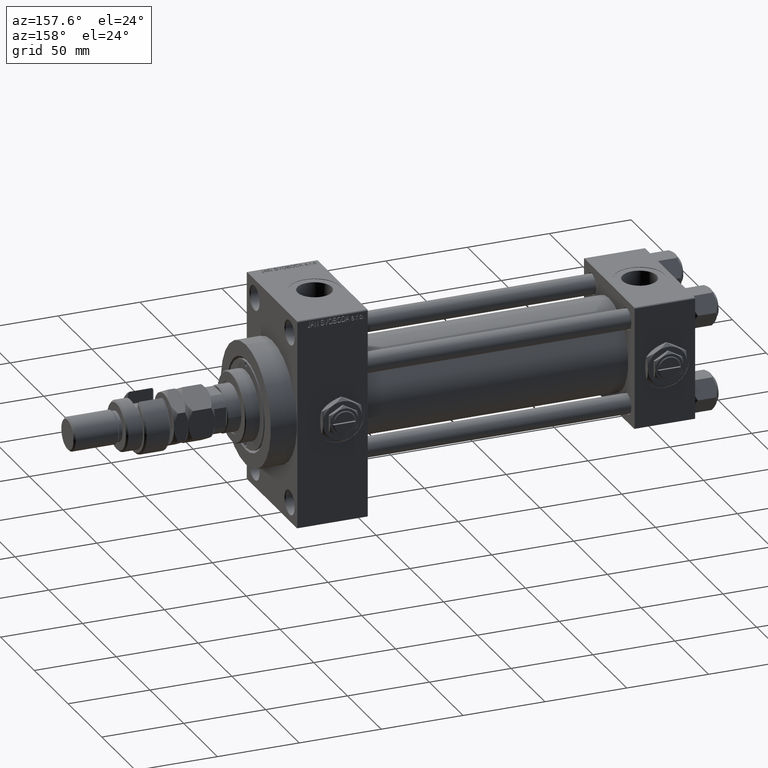
[diagram: clean part render]
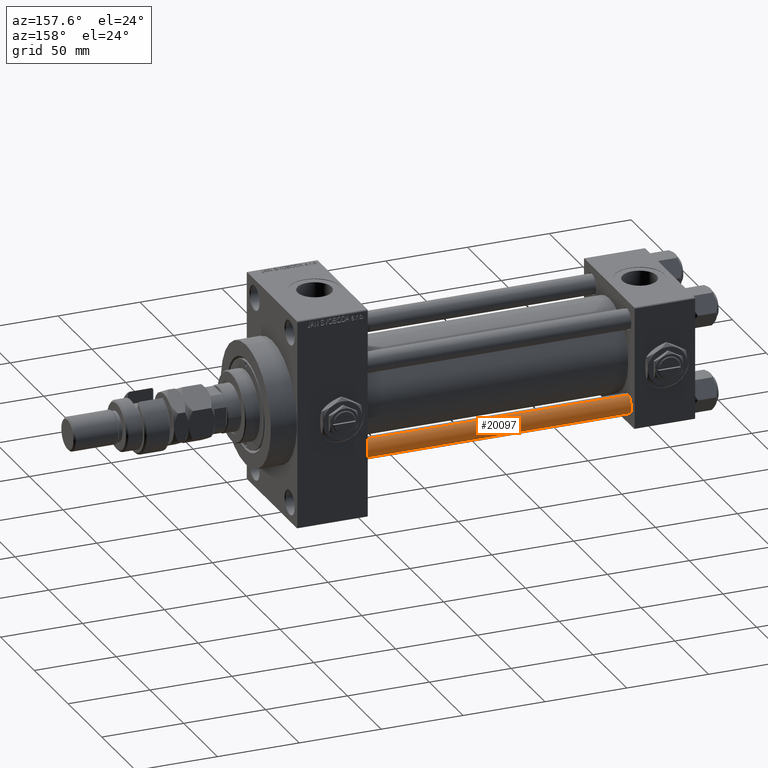
[diagram: same view with one face highlighted and labeled with its STEP entity id]
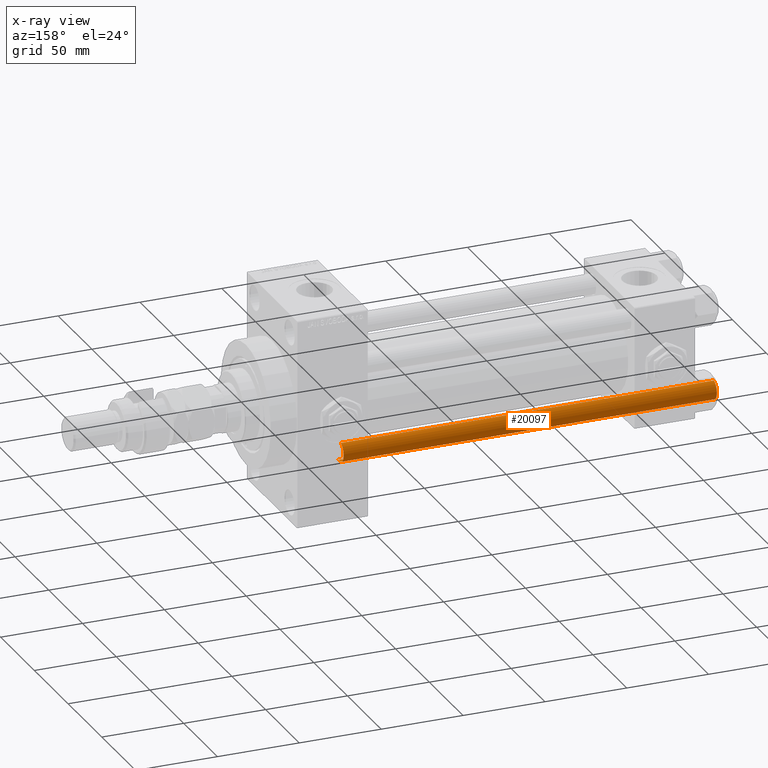
[diagram: x-ray of the same camera — body ghosted, the highlighted face saturated]
A machine part, auxiliary view. The second image highlights one B-rep face of the part: STEP entity #20097.
The next image is the same camera in x-ray: the body ghosted, the highlighted face saturated — about 0% of this face is hidden behind the body in this view.
In plain terms, the highlighted cylindrical surface (edge-blend (fillet) strip) has radius 6 mm, axis along (1, -0, 0).
Its self-contained STEP definition (entity closure, byte-faithful):
#1382 = DIRECTION ( 'NONE',  ( -0.000000000000000000, -0.000000000000000000, 1.000000000000000000 ) ) ;
#1650 = CARTESIAN_POINT ( 'NONE',  ( 0.000000000000000000, 0.000000000000000000, 0.5000000000001392220 ) ) ;
#3636 = EDGE_CURVE ( 'NONE', #45963, #42252, #21324, .T. ) ;
#5089 = CARTESIAN_POINT ( 'NONE',  ( -6.000000000000000888, 0.000000000000000000, 0.5000000000001392220 ) ) ;
#6071 = ORIENTED_EDGE ( 'NONE', *, *, #27581, .T. ) ;
#14538 = CARTESIAN_POINT ( 'NONE',  ( 6.000000000000000888, 7.347880794884119736E-16, 229.0000000000000000 ) ) ;
#15139 = ORIENTED_EDGE ( 'NONE', *, *, #3636, .T. ) ;
#17648 = ORIENTED_EDGE ( 'NONE', *, *, #46599, .T. ) ;
#19370 = DIRECTION ( 'NONE',  ( 1.000000000000000000, 0.000000000000000000, 0.000000000000000000 ) ) ;
#19821 = CIRCLE ( 'NONE', #38419, 6.000000000000000888 ) ;
#20097 = ADVANCED_FACE ( 'NONE', ( #36056 ), #51415, .T. ) ;
#21324 = CIRCLE ( 'NONE', #22202, 6.000000000000000888 ) ;
#22035 = DIRECTION ( 'NONE',  ( 1.000000000000000000, 0.000000000000000000, 0.000000000000000000 ) ) ;
#22202 = AXIS2_PLACEMENT_3D ( 'NONE', #42935, #27027, #19370 ) ;
#23090 = VERTEX_POINT ( 'NONE', #25842 ) ;
#24465 = VERTEX_POINT ( 'NONE', #5089 ) ;
#25842 = CARTESIAN_POINT ( 'NONE',  ( 6.000000000000000888, 7.347880794884119736E-16, 0.5000000000001392220 ) ) ;
#26629 = DIRECTION ( 'NONE',  ( -0.000000000000000000, -0.000000000000000000, -1.000000000000000000 ) ) ;
#27013 = VECTOR ( 'NONE', #26629, 1000.000000000000000 ) ;
#27027 = DIRECTION ( 'NONE',  ( 0.000000000000000000, 0.000000000000000000, -1.000000000000000000 ) ) ;
#27581 = EDGE_CURVE ( 'NONE', #23090, #24465, #19821, .T. ) ;
#28353 = CARTESIAN_POINT ( 'NONE',  ( 0.000000000000000000, 0.000000000000000000, 229.0000000000000000 ) ) ;
#28904 = VECTOR ( 'NONE', #35172, 1000.000000000000000 ) ;
#29675 = AXIS2_PLACEMENT_3D ( 'NONE', #28353, #35810, #43476 ) ;
#32941 = EDGE_LOOP ( 'NONE', ( #15139, #17648, #6071, #41258 ) ) ;
#34164 = CARTESIAN_POINT ( 'NONE',  ( 6.000000000000000888, 7.347880794884119736E-16, 228.5000000000001137 ) ) ;
#34851 = LINE ( 'NONE', #50472, #27013 ) ;
#35172 = DIRECTION ( 'NONE',  ( -0.000000000000000000, -0.000000000000000000, -1.000000000000000000 ) ) ;
#35810 = DIRECTION ( 'NONE',  ( -0.000000000000000000, -0.000000000000000000, -1.000000000000000000 ) ) ;
#36056 = FACE_OUTER_BOUND ( 'NONE', #32941, .T. ) ;
#37304 = EDGE_CURVE ( 'NONE', #45963, #24465, #34851, .T. ) ;
#38419 = AXIS2_PLACEMENT_3D ( 'NONE', #1650, #1382, #22035 ) ;
#41258 = ORIENTED_EDGE ( 'NONE', *, *, #37304, .F. ) ;
#42252 = VERTEX_POINT ( 'NONE', #34164 ) ;
#42935 = CARTESIAN_POINT ( 'NONE',  ( 0.000000000000000000, 0.000000000000000000, 228.5000000000001137 ) ) ;
#43476 = DIRECTION ( 'NONE',  ( -1.000000000000000000, 0.000000000000000000, 0.000000000000000000 ) ) ;
#45963 = VERTEX_POINT ( 'NONE', #50134 ) ;
#46556 = LINE ( 'NONE', #14538, #28904 ) ;
#46599 = EDGE_CURVE ( 'NONE', #42252, #23090, #46556, .T. ) ;
#50134 = CARTESIAN_POINT ( 'NONE',  ( -6.000000000000000888, 0.000000000000000000, 228.5000000000001137 ) ) ;
#50472 = CARTESIAN_POINT ( 'NONE',  ( -6.000000000000000888, 0.000000000000000000, 229.0000000000000000 ) ) ;
#51415 = CYLINDRICAL_SURFACE ( 'NONE', #29675, 6.000000000000000888 ) ;